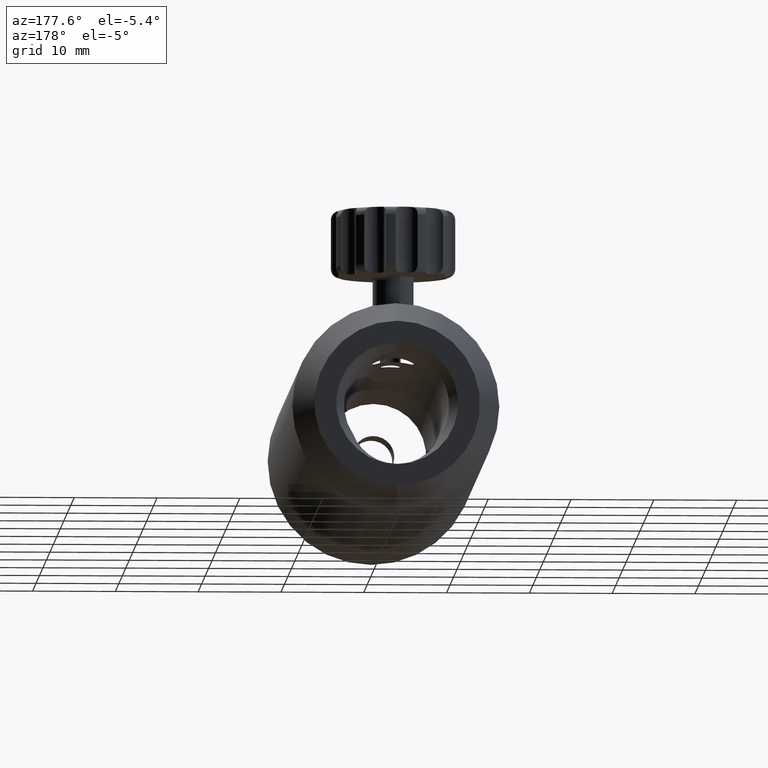
[diagram: clean part render]
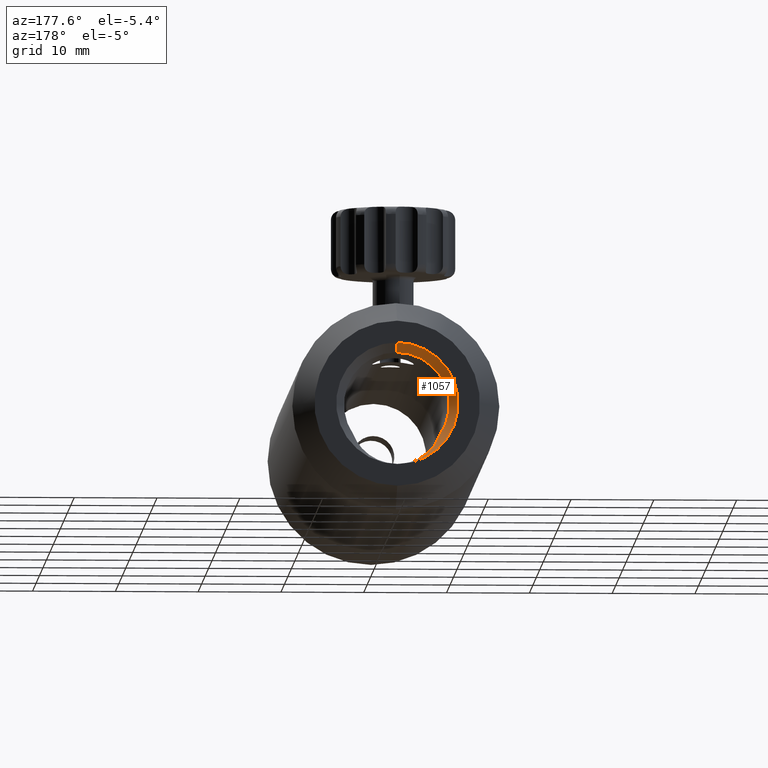
[diagram: same view with one face highlighted and labeled with its STEP entity id]
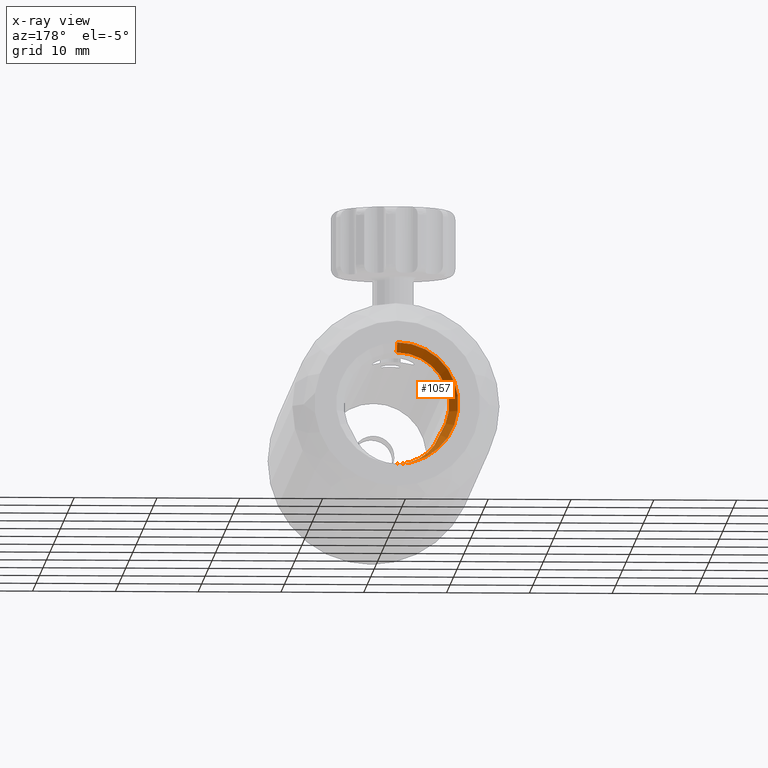
[diagram: x-ray of the same camera — body ghosted, the highlighted face saturated]
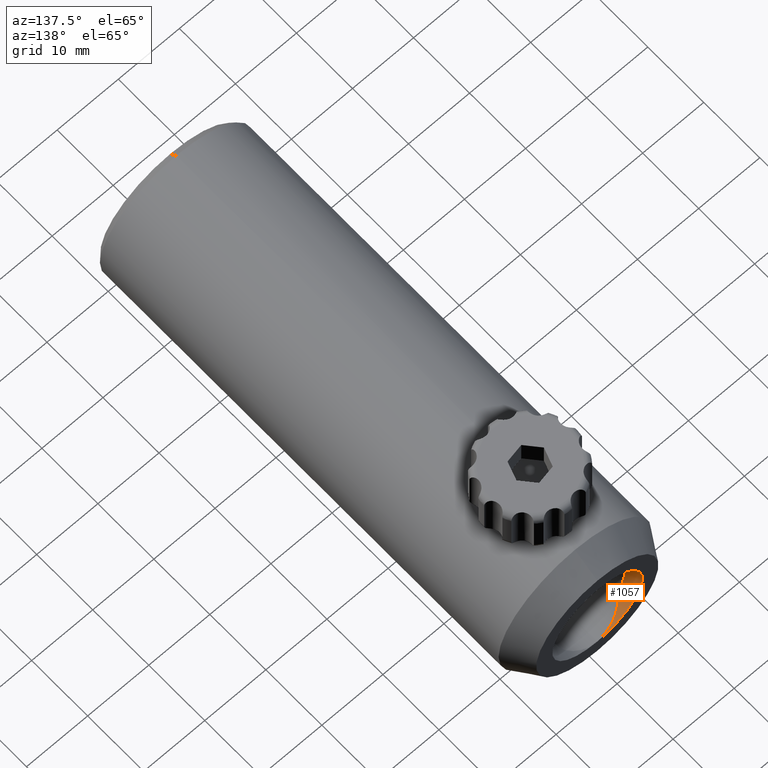
[diagram: same view with one face highlighted and labeled with its STEP entity id]
A machine part, auxiliary view. The second image highlights one B-rep face of the part: STEP entity #1057.
The next image is the same camera in x-ray: the body ghosted, the highlighted face saturated — about 0% of this face is hidden behind the body in this view.
A second angle (auxiliary view) of the same face is appended — the face is thin or edge-on in the first view.
In plain terms, the highlighted conical surface has half-angle 27 deg.
Its self-contained STEP definition (entity closure, byte-faithful):
#11 = EDGE_CURVE ( 'NONE', #3025, #1606, #3240, .T. ) ;
#145 = CARTESIAN_POINT ( 'NONE',  ( -4.301535100733245200, 65.37765670659442200, -5.288258953580926100 ) ) ;
#157 = CARTESIAN_POINT ( 'NONE',  ( -2.032540197037567200, 66.24499666924863600, -6.969056832329405500 ) ) ;
#195 = CARTESIAN_POINT ( 'NONE',  ( -5.492899783680423300E-015, 66.43434617649765500, -7.350000000000018300 ) ) ;
#227 = DIRECTION ( 'NONE',  ( -9.992007221626422700E-016, 0.0000000000000000000, -1.000000000000000000 ) ) ;
#372 = DIRECTION ( 'NONE',  ( -1.502285461903961200E-018, 1.000000000000000000, 4.971860657915503100E-018 ) ) ;
#443 = CARTESIAN_POINT ( 'NONE',  ( -1.189803944341297500, 66.37406344441969000, -7.228181748485490700 ) ) ;
#736 = CARTESIAN_POINT ( 'NONE',  ( -4.120569214640080500, 65.49182950852218700, -5.503600442521884500 ) ) ;
#803 = LINE ( 'NONE', #2016, #1143 ) ;
#981 = ORIENTED_EDGE ( 'NONE', *, *, #11, .T. ) ;
#1000 = CARTESIAN_POINT ( 'NONE',  ( 7.360156408999120000E-015, 66.47173567099247300, 7.369050898988852800 ) ) ;
#1013 = CARTESIAN_POINT ( 'NONE',  ( -3.729573374390329200, 65.70073953937584600, -5.901934018623010500 ) ) ;
#1057 = ADVANCED_FACE ( 'NONE', ( #3384 ), #3307, .F. ) ;
#1064 = CARTESIAN_POINT ( 'NONE',  ( 0.0000000000000000000, 66.47173567099247300, 0.0000000000000000000 ) ) ;
#1143 = VECTOR ( 'NONE', #1794, 1000.000000000000200 ) ;
#1155 = CARTESIAN_POINT ( 'NONE',  ( -5.198049867510712300, 64.47173567099247300, -3.647297297297291700 ) ) ;
#1196 = CARTESIAN_POINT ( 'NONE',  ( -6.463717091226673800E-015, 66.47173567099247300, -7.369050898988852800 ) ) ;
#1218 = EDGE_CURVE ( 'NONE', #2938, #3025, #3303, .T. ) ;
#1386 = EDGE_CURVE ( 'NONE', #2938, #1640, #1658, .T. ) ;
#1509 = EDGE_LOOP ( 'NONE', ( #981, #2145, #1900, #1647, #2287 ) ) ;
#1569 = AXIS2_PLACEMENT_3D ( 'NONE', #2763, #1909, #227 ) ;
#1606 = VERTEX_POINT ( 'NONE', #2007 ) ;
#1621 = VECTOR ( 'NONE', #3367, 1000.000000000000200 ) ;
#1640 = VERTEX_POINT ( 'NONE', #1000 ) ;
#1647 = ORIENTED_EDGE ( 'NONE', *, *, #1386, .F. ) ;
#1658 = LINE ( 'NONE', #2176, #1621 ) ;
#1794 = DIRECTION ( 'NONE',  ( -3.993683801075498600E-016, 0.8910065241883675700, -0.4539904997395473000 ) ) ;
#1900 = ORIENTED_EDGE ( 'NONE', *, *, #2121, .F. ) ;
#1909 = DIRECTION ( 'NONE',  ( 1.502285461903961200E-018, -1.000000000000000000, -4.971860657915503100E-018 ) ) ;
#2007 = CARTESIAN_POINT ( 'NONE',  ( -5.492899783680423300E-015, 66.43434617649765500, -7.350000000000018300 ) ) ;
#2016 = CARTESIAN_POINT ( 'NONE',  ( -5.567273868274201400E-015, 64.47173567099247300, -6.349999999999991700 ) ) ;
#2089 = DIRECTION ( 'NONE',  ( 9.992007221626422700E-016, 0.0000000000000000000, 1.000000000000000000 ) ) ;
#2105 = CARTESIAN_POINT ( 'NONE',  ( -3.518615612864489900, 65.79644697611105600, -6.086700561289947400 ) ) ;
#2117 = CARTESIAN_POINT ( 'NONE',  ( -1.476794917989204600, 66.33833332474804900, -7.156132233123592800 ) ) ;
#2121 = EDGE_CURVE ( 'NONE', #1640, #3443, #3313, .T. ) ;
#2145 = ORIENTED_EDGE ( 'NONE', *, *, #2498, .T. ) ;
#2150 = CARTESIAN_POINT ( 'NONE',  ( -0.5962139497182052900, 66.42243473507601000, -7.325856213586509300 ) ) ;
#2176 = CARTESIAN_POINT ( 'NONE',  ( 6.344924585732769500E-015, 64.47173567099247300, 6.349999999999991700 ) ) ;
#2237 = AXIS2_PLACEMENT_3D ( 'NONE', #2337, #372, #2089 ) ;
#2287 = ORIENTED_EDGE ( 'NONE', *, *, #1218, .T. ) ;
#2337 = CARTESIAN_POINT ( 'NONE',  ( 0.0000000000000000000, 64.47173567099247300, 0.0000000000000000000 ) ) ;
#2389 = CARTESIAN_POINT ( 'NONE',  ( -3.064607960093036300, 65.97063812755992300, -6.425856808081160700 ) ) ;
#2498 = EDGE_CURVE ( 'NONE', #1606, #3443, #803, .T. ) ;
#2660 = CARTESIAN_POINT ( 'NONE',  ( -5.198049867510712300, 64.47173567099247300, -3.647297297297291700 ) ) ;
#2676 = CARTESIAN_POINT ( 'NONE',  ( -2.301285439446899300, 66.18738184296010700, -6.854008297618910300 ) ) ;
#2763 = CARTESIAN_POINT ( 'NONE',  ( 0.0000000000000000000, 64.47173567099247300, 0.0000000000000000000 ) ) ;
#2889 = AXIS2_PLACEMENT_3D ( 'NONE', #1064, #2990, #3260 ) ;
#2938 = VERTEX_POINT ( 'NONE', #3082 ) ;
#2990 = DIRECTION ( 'NONE',  ( 1.502285461903961200E-018, -1.000000000000000000, -4.971860657915503100E-018 ) ) ;
#3025 = VERTEX_POINT ( 'NONE', #1155 ) ;
#3082 = CARTESIAN_POINT ( 'NONE',  ( 6.852540497365953800E-015, 64.47173567099247300, 6.350000000000000500 ) ) ;
#3230 = CARTESIAN_POINT ( 'NONE',  ( -2.820387895621080600, 66.04944861895469900, -6.580901165178077300 ) ) ;
#3240 = B_SPLINE_CURVE_WITH_KNOTS ( 'NONE', 3,
 ( #2660, #3243, #3499, #145, #736, #1013, #2105, #2389, #3230, #2676, #157, #2117, #443, #2150, #3554, #195 ),
 .UNSPECIFIED., .F., .F.,
 ( 4, 2, 2, 2, 2, 2, 2, 4 ),
 ( 4.146292212915003300E-007, 0.001781182817859550100, 0.002671566912178679600, 0.003561951006497809100, 0.004452335100816938100, 0.005342719195136067100, 0.006233103289455197000, 0.007123487383774326100 ),
 .UNSPECIFIED. ) ;
#3243 = CARTESIAN_POINT ( 'NONE',  ( -5.024910953875015600, 64.75805280018764200, -4.148040668156546900 ) ) ;
#3260 = DIRECTION ( 'NONE',  ( -9.992007221626418700E-016, 0.0000000000000000000, -1.000000000000000000 ) ) ;
#3303 = CIRCLE ( 'NONE', #1569, 6.349999999999991700 ) ;
#3307 = CONICAL_SURFACE ( 'NONE', #2237, 6.349999999999991700, 0.4712388980384700800 ) ;
#3313 = CIRCLE ( 'NONE', #2889, 7.369050898988852800 ) ;
#3367 = DIRECTION ( 'NONE',  ( 4.522890890469847000E-016, 0.8910065241883675700, 0.4539904997395473000 ) ) ;
#3384 = FACE_OUTER_BOUND ( 'NONE', #1509, .T. ) ;
#3443 = VERTEX_POINT ( 'NONE', #1196 ) ;
#3499 = CARTESIAN_POINT ( 'NONE',  ( -4.781443012161835400, 65.01962102713400800, -4.622565263492745700 ) ) ;
#3554 = CARTESIAN_POINT ( 'NONE',  ( -0.2976514074173007800, 66.43434617649765500, -7.350000000000019200 ) ) ;